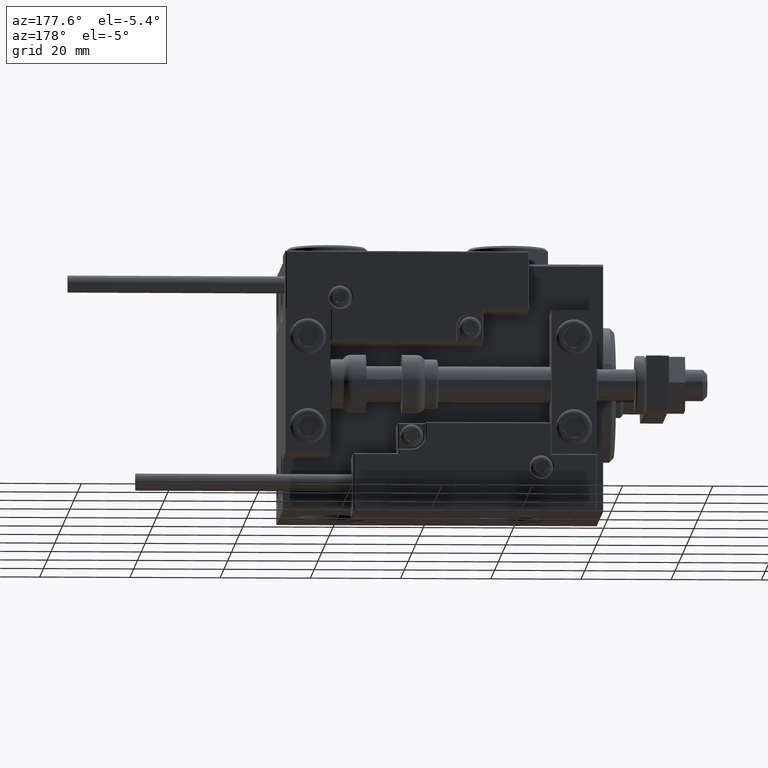
[diagram: clean part render]
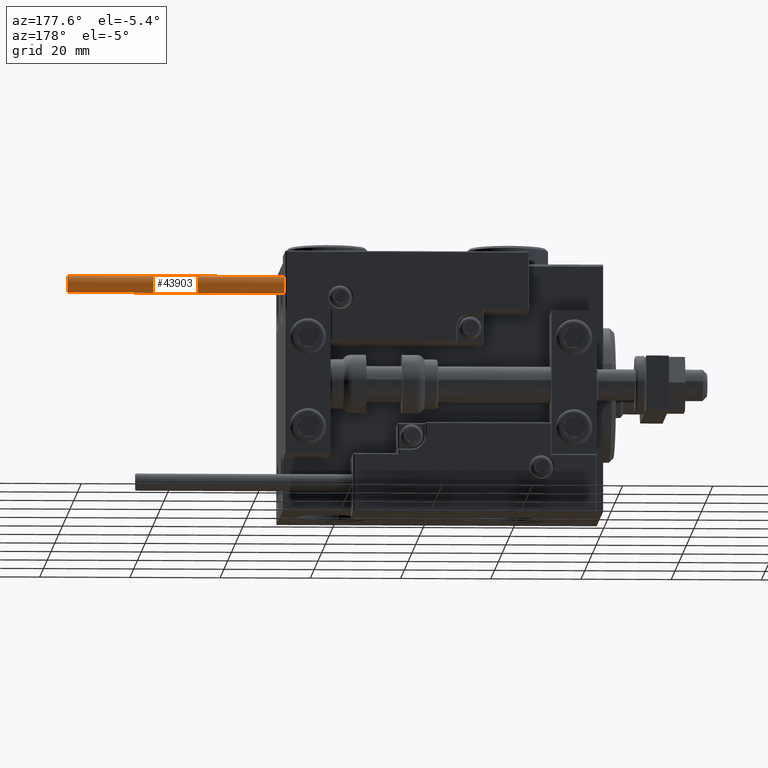
[diagram: same view with one face highlighted and labeled with its STEP entity id]
A machine part, auxiliary view. The second image highlights one B-rep face of the part: STEP entity #43903.
In plain terms, the highlighted cylindrical surface (edge-blend (fillet) strip) has radius 1.9 mm, axis along (-1, -0, 0).
Its self-contained STEP definition (entity closure, byte-faithful):
#1579 = CYLINDRICAL_SURFACE ( 'NONE', #16550, 1.899999999999999467 ) ;
#3175 = LINE ( 'NONE', #18550, #15152 ) ;
#3478 = CARTESIAN_POINT ( 'NONE',  ( 1.899999999999999467, 2.326828918379970872E-16, 48.00000000000000000 ) ) ;
#4189 = ORIENTED_EDGE ( 'NONE', *, *, #38940, .T. ) ;
#4723 = DIRECTION ( 'NONE',  ( -1.000000000000000000, 0.000000000000000000, 0.000000000000000000 ) ) ;
#5671 = VERTEX_POINT ( 'NONE', #8278 ) ;
#6632 = EDGE_CURVE ( 'NONE', #5671, #32015, #25000, .T. ) ;
#7579 = CARTESIAN_POINT ( 'NONE',  ( 0.000000000000000000, 0.000000000000000000, 48.00000000000000000 ) ) ;
#8278 = CARTESIAN_POINT ( 'NONE',  ( 1.899999999999999467, 2.326828918379970872E-16, 48.00000000000000000 ) ) ;
#8451 = CARTESIAN_POINT ( 'NONE',  ( -1.899999999999999467, 0.000000000000000000, 0.000000000000000000 ) ) ;
#10182 = AXIS2_PLACEMENT_3D ( 'NONE', #19804, #47711, #23715 ) ;
#11211 = ORIENTED_EDGE ( 'NONE', *, *, #24752, .F. ) ;
#11887 = EDGE_LOOP ( 'NONE', ( #20600, #4189, #40200, #11211 ) ) ;
#13307 = DIRECTION ( 'NONE',  ( -0.000000000000000000, -0.000000000000000000, -1.000000000000000000 ) ) ;
#15152 = VECTOR ( 'NONE', #34435, 1000.000000000000000 ) ;
#16550 = AXIS2_PLACEMENT_3D ( 'NONE', #21631, #13307, #4723 ) ;
#18550 = CARTESIAN_POINT ( 'NONE',  ( -1.899999999999999467, 0.000000000000000000, 48.00000000000000000 ) ) ;
#19804 = CARTESIAN_POINT ( 'NONE',  ( 0.000000000000000000, 0.000000000000000000, 0.000000000000000000 ) ) ;
#20600 = ORIENTED_EDGE ( 'NONE', *, *, #6632, .F. ) ;
#20616 = FACE_OUTER_BOUND ( 'NONE', #11887, .T. ) ;
#21631 = CARTESIAN_POINT ( 'NONE',  ( 0.000000000000000000, 0.000000000000000000, 48.00000000000000000 ) ) ;
#23715 = DIRECTION ( 'NONE',  ( 1.000000000000000000, 0.000000000000000000, 0.000000000000000000 ) ) ;
#24752 = EDGE_CURVE ( 'NONE', #32015, #32331, #3175, .T. ) ;
#25000 = CIRCLE ( 'NONE', #46686, 1.899999999999999467 ) ;
#25668 = EDGE_CURVE ( 'NONE', #29136, #32331, #40129, .T. ) ;
#29136 = VERTEX_POINT ( 'NONE', #45299 ) ;
#32015 = VERTEX_POINT ( 'NONE', #36627 ) ;
#32331 = VERTEX_POINT ( 'NONE', #8451 ) ;
#34214 = DIRECTION ( 'NONE',  ( -0.000000000000000000, -0.000000000000000000, -1.000000000000000000 ) ) ;
#34435 = DIRECTION ( 'NONE',  ( -0.000000000000000000, -0.000000000000000000, -1.000000000000000000 ) ) ;
#35188 = DIRECTION ( 'NONE',  ( 1.000000000000000000, 0.000000000000000000, 0.000000000000000000 ) ) ;
#36627 = CARTESIAN_POINT ( 'NONE',  ( -1.899999999999999467, 0.000000000000000000, 48.00000000000000000 ) ) ;
#38940 = EDGE_CURVE ( 'NONE', #5671, #29136, #39170, .T. ) ;
#39170 = LINE ( 'NONE', #3478, #48815 ) ;
#40129 = CIRCLE ( 'NONE', #10182, 1.899999999999999467 ) ;
#40200 = ORIENTED_EDGE ( 'NONE', *, *, #25668, .T. ) ;
#43903 = ADVANCED_FACE ( 'NONE', ( #20616 ), #1579, .T. ) ;
#45299 = CARTESIAN_POINT ( 'NONE',  ( 1.899999999999999467, 2.326828918379970872E-16, 0.000000000000000000 ) ) ;
#46686 = AXIS2_PLACEMENT_3D ( 'NONE', #7579, #47212, #35188 ) ;
#47212 = DIRECTION ( 'NONE',  ( 0.000000000000000000, 0.000000000000000000, 1.000000000000000000 ) ) ;
#47711 = DIRECTION ( 'NONE',  ( 0.000000000000000000, 0.000000000000000000, 1.000000000000000000 ) ) ;
#48815 = VECTOR ( 'NONE', #34214, 1000.000000000000000 ) ;